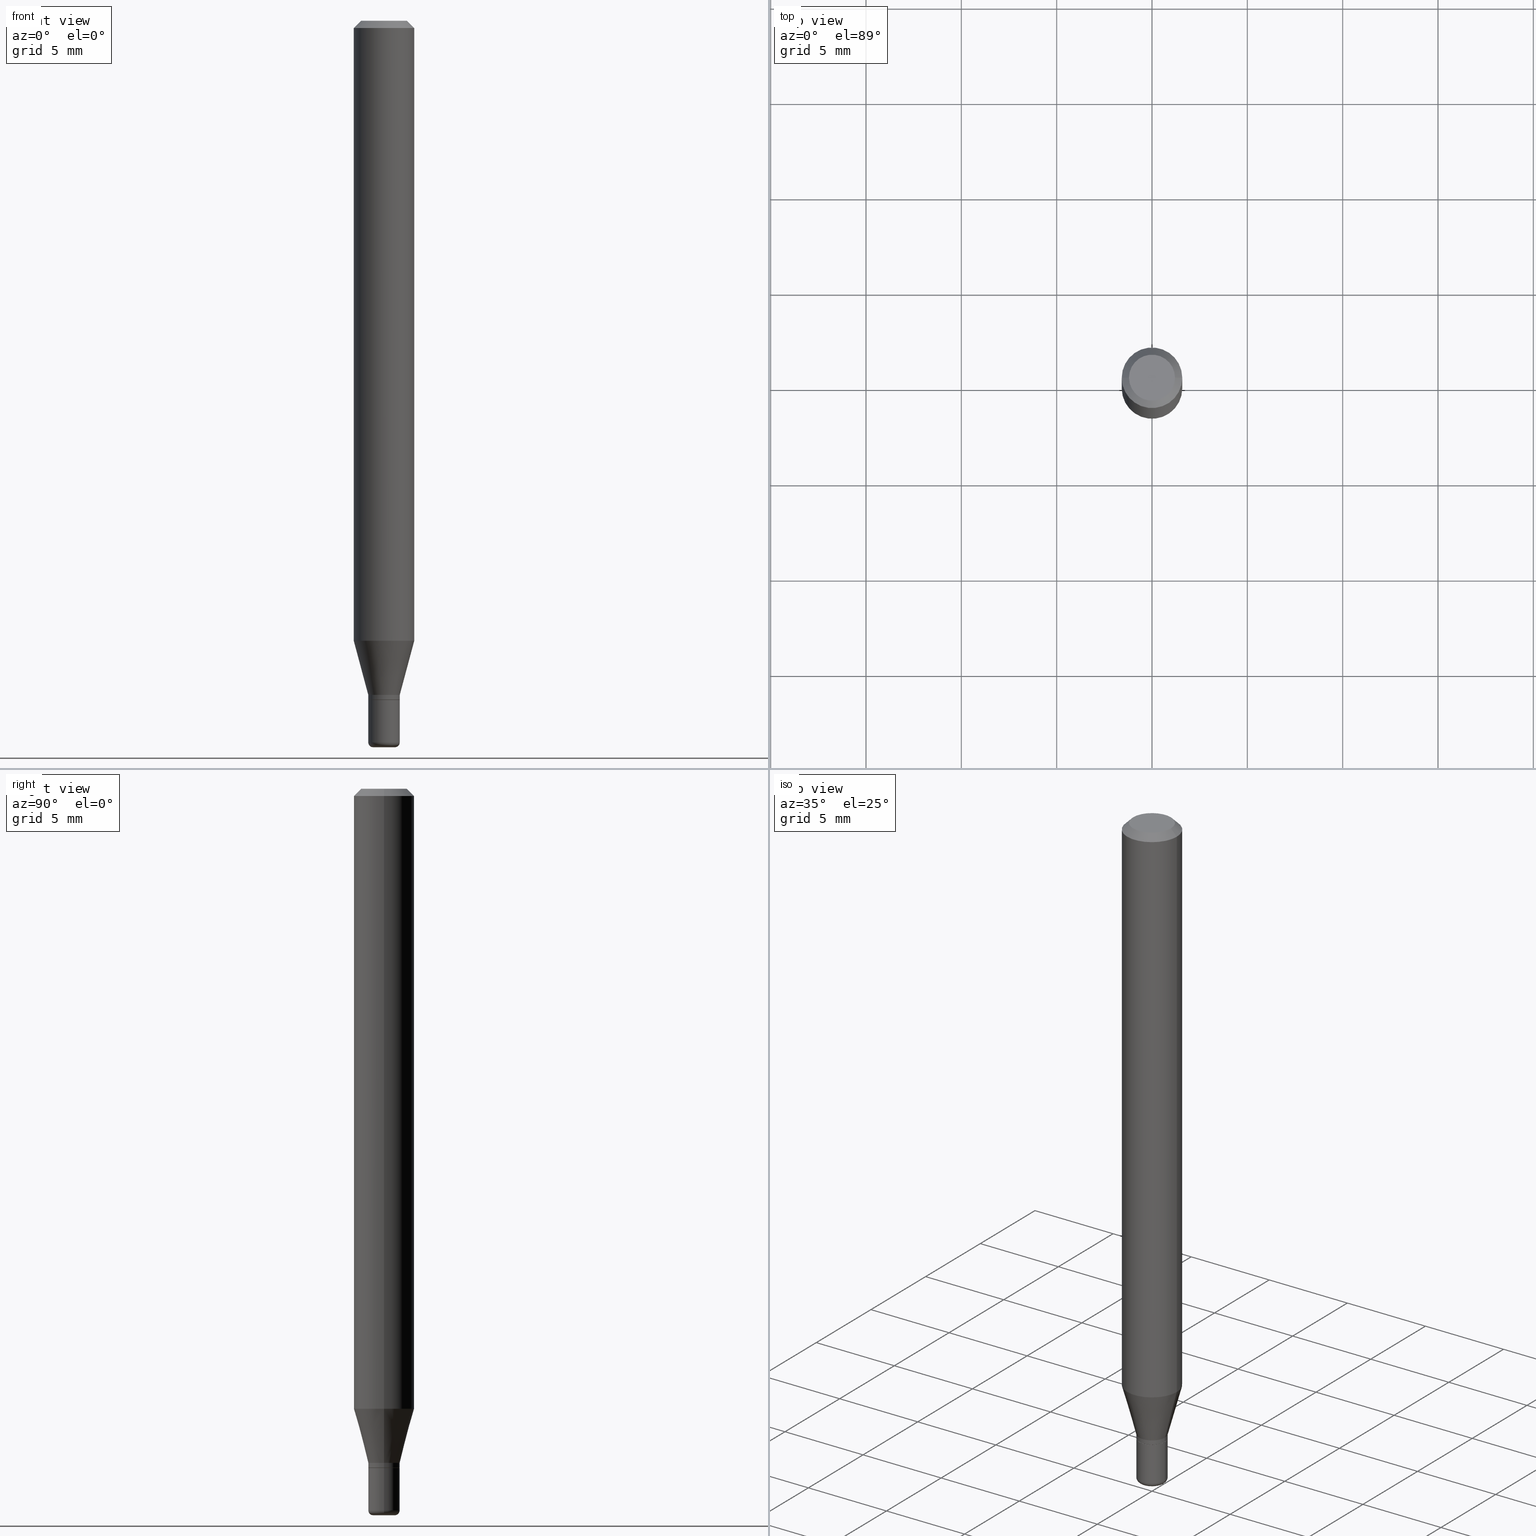
[diagram: canonical four-view strip — front | top / right | iso, engineering-drawing reading convention]
A machine part, canonical four-view strip (front | top / right | iso — engineering-drawing reading convention). The complete STEP part file that produces these views, byte-faithful:
ISO-10303-21;
HEADER;
FILE_DESCRIPTION (( 'STEP AP203' ),
    '1' );
FILE_NAME ('09026.STEP',
    '2024-02-29T21:23:54',
    ( '' ),
    ( '' ),
    'SwSTEP 2.0',
    'SolidWorks 2023',
    '' );
FILE_SCHEMA (( 'CONFIG_CONTROL_DESIGN' ));
ENDSEC;

DATA;
#1 = VECTOR ( 'NONE', #165, 39.37007874015748143 ) ;
#2 = EDGE_CURVE ( 'NONE', #208, #184, #245, .T. ) ;
#3 = CIRCLE ( 'NONE', #268, 0.03249999999999994560 ) ;
#4 = CARTESIAN_POINT ( 'NONE',  ( -0.06250000000000000000, 4.440892098500626162E-16, -3.074334431409316114E-30 ) ) ;
#5 = CC_DESIGN_SECURITY_CLASSIFICATION ( #483, ( #59 ) ) ;
#6 = ORIENTED_EDGE ( 'NONE', *, *, #350, .F. ) ;
#7 = EDGE_CURVE ( 'NONE', #77, #22, #14, .T. ) ;
#8 = FACE_OUTER_BOUND ( 'NONE', #400, .T. ) ;
#9 =( LENGTH_UNIT ( ) NAMED_UNIT ( * ) SI_UNIT ( $, .METRE. ) );
#10 = FACE_OUTER_BOUND ( 'NONE', #223, .T. ) ;
#11 = FACE_OUTER_BOUND ( 'NONE', #466, .T. ) ;
#12 = CARTESIAN_POINT ( 'NONE',  ( 3.404092578209710223E-29, -4.860142023669658418E-15, -1.392000000000000126 ) ) ;
#13 = APPROVAL_ROLE ( '' ) ;
#14 = CIRCLE ( 'NONE', #138, 0.03250000000000000111 ) ;
#15 = DIRECTION ( 'NONE',  ( -2.445468806185136597E-29, 3.491481338843145583E-15, 1.000000000000000000 ) ) ;
#16 = AXIS2_PLACEMENT_3D ( 'NONE', #429, #233, #29 ) ;
#17 = COORDINATED_UNIVERSAL_TIME_OFFSET ( 5, 0, .BEHIND. ) ;
#18 = CARTESIAN_POINT ( 'NONE',  ( -6.680649051745406845E-45, 9.538196290434862081E-31, 2.731847993664263218E-16 ) ) ;
#19 = DATE_AND_TIME ( #90, #43 ) ;
#20 = EDGE_CURVE ( 'NONE', #66, #347, #116, .T. ) ;
#21 = CARTESIAN_POINT ( 'NONE',  ( -0.03249999999999994560, -4.817755626845157109E-15, -1.490000000000000213 ) ) ;
#22 = VERTEX_POINT ( 'NONE', #481 ) ;
#23 = CALENDAR_DATE ( 2024, 29, 2 ) ;
#24 = CARTESIAN_POINT ( 'NONE',  ( 0.02250000000000000264, -5.394338668512659809E-15, -1.500000000000000222 ) ) ;
#25 = ORIENTED_EDGE ( 'NONE', *, *, #143, .T. ) ;
#26 = DIRECTION ( 'NONE',  ( 1.000000000000000000, -6.982962677686262766E-15, 0.000000000000000000 ) ) ;
#27 = VERTEX_POINT ( 'NONE', #46 ) ;
#28 = EDGE_CURVE ( 'NONE', #347, #422, #75, .T. ) ;
#29 = DIRECTION ( 'NONE',  ( 1.000000000000000000, -6.982962677686279332E-15, 0.000000000000000000 ) ) ;
#30 = ORIENTED_EDGE ( 'NONE', *, *, #382, .F. ) ;
#31 = CONICAL_SURFACE ( 'NONE', #516, 0.06250000000000000000, 0.7853981633974488341 ) ;
#32 = EDGE_LOOP ( 'NONE', ( #25, #304, #460, #194 ) ) ;
#33 = LOCAL_TIME ( 16, 23, 54.00000000000000000, #342 ) ;
#34 = DIRECTION ( 'NONE',  ( 1.000000000000000000, -6.982962677686266711E-15, 0.000000000000000000 ) ) ;
#35 = ORIENTED_EDGE ( 'NONE', *, *, #350, .T. ) ;
#36 = FACE_OUTER_BOUND ( 'NONE', #106, .T. ) ;
#37 = CC_DESIGN_DATE_AND_TIME_ASSIGNMENT ( #19, #216, ( #483 ) ) ;
#38 = DIRECTION ( 'NONE',  ( -1.000000000000000000, 6.982962677686266711E-15, 0.000000000000000000 ) ) ;
#39 = ORIENTED_EDGE ( 'NONE', *, *, #338, .F. ) ;
#40 = TOROIDAL_SURFACE ( 'NONE', #376, 0.02249999999999999917, 0.009999999999999946432 ) ;
#41 = AXIS2_PLACEMENT_3D ( 'NONE', #358, #79, #399 ) ;
#42 = ORIENTED_EDGE ( 'NONE', *, *, #372, .T. ) ;
#43 = LOCAL_TIME ( 16, 23, 54.00000000000000000, #502 ) ;
#44 = AXIS2_PLACEMENT_3D ( 'NONE', #222, #267, #308 ) ;
#45 = APPROVAL ( #339, 'UNSPECIFIED' ) ;
#46 = CARTESIAN_POINT ( 'NONE',  ( -0.03199999999999996597, -4.665033934440748182E-15, -1.402000000000000135 ) ) ;
#47 = AXIS2_PLACEMENT_3D ( 'NONE', #447, #492, #176 ) ;
#48 = FACE_OUTER_BOUND ( 'NONE', #32, .T. ) ;
#49 =( CONVERSION_BASED_UNIT ( 'INCH', #408 ) LENGTH_UNIT ( ) NAMED_UNIT ( #221 ) );
#50 = CIRCLE ( 'NONE', #354, 0.03250000000000000111 ) ;
#51 = DIRECTION ( 'NONE',  ( -2.445468806185136597E-29, 3.491481338843145583E-15, 1.000000000000000000 ) ) ;
#52 = DIRECTION ( 'NONE',  ( 1.000000000000000000, -6.982962677686267499E-15, 0.000000000000000000 ) ) ;
#53 = EDGE_CURVE ( 'NONE', #440, #422, #123, .T. ) ;
#54 = PERSON_AND_ORGANIZATION ( #88, #126 ) ;
#55 = CARTESIAN_POINT ( 'NONE',  ( -0.03249999999999998029, -4.629215634547626046E-15, -1.392000000000000126 ) ) ;
#56 = ADVANCED_BREP_SHAPE_REPRESENTATION ( '09026', ( #115, #454, #511 ), #322 ) ;
#57 = SECURITY_CLASSIFICATION_LEVEL ( 'unclassified' ) ;
#58 = CARTESIAN_POINT ( 'NONE',  ( 0.000000000000000000, 0.000000000000000000, 0.000000000000000000 ) ) ;
#59 = PRODUCT_DEFINITION_FORMATION_WITH_SPECIFIED_SOURCE ( 'ANY', '', #335, .NOT_KNOWN. ) ;
#60 = PLANE ( 'NONE',  #471 ) ;
#61 = EDGE_LOOP ( 'NONE', ( #199, #149, #188, #470 ) ) ;
#62 = DIRECTION ( 'NONE',  ( 1.000000000000000000, -6.982962677686266711E-15, 4.852736867747365086E-29 ) ) ;
#63 = AXIS2_PLACEMENT_3D ( 'NONE', #175, #256, #220 ) ;
#64 = VERTEX_POINT ( 'NONE', #160 ) ;
#65 = DIRECTION ( 'NONE',  ( -1.000000000000000000, 7.105427357600964782E-15, 0.000000000000000000 ) ) ;
#66 = VERTEX_POINT ( 'NONE', #402 ) ;
#67 = AXIS2_PLACEMENT_3D ( 'NONE', #435, #328, #38 ) ;
#68 = LINE ( 'NONE', #100, #294 ) ;
#69 = ORIENTED_EDGE ( 'NONE', *, *, #319, .F. ) ;
#70 = ADVANCED_FACE ( 'NONE', ( #36 ), #40, .T. ) ;
#71 = DIRECTION ( 'NONE',  ( -2.445468806185136597E-29, 3.491481338843145583E-15, 1.000000000000000000 ) ) ;
#72 = VERTEX_POINT ( 'NONE', #362 ) ;
#73 = MECHANICAL_CONTEXT ( 'NONE', #297, 'mechanical' ) ;
#74 = CARTESIAN_POINT ( 'NONE',  ( 0.03199999999999996597, -5.118511642744051990E-15, -1.402000000000000135 ) ) ;
#75 = CIRCLE ( 'NONE', #310, 0.06250000000000000000 ) ;
#76 = CARTESIAN_POINT ( 'NONE',  ( 0.000000000000000000, 0.000000000000000000, 0.000000000000000000 ) ) ;
#77 = VERTEX_POINT ( 'NONE', #120 ) ;
#78 = EDGE_CURVE ( 'NONE', #22, #77, #50, .T. ) ;
#79 = DIRECTION ( 'NONE',  ( -2.438088387897960049E-29, 3.491481338843145188E-15, 1.000000000000000000 ) ) ;
#80 = ORIENTED_EDGE ( 'NONE', *, *, #7, .T. ) ;
#81 = VECTOR ( 'NONE', #482, 39.37007874015748143 ) ;
#82 = ADVANCED_FACE ( 'NONE', ( #274 ), #323, .F. ) ;
#83 = ORIENTED_EDGE ( 'NONE', *, *, #324, .T. ) ;
#84 = TOROIDAL_SURFACE ( 'NONE', #467, 0.02249999999999999917, 0.009999999999999946432 ) ;
#85 = EDGE_CURVE ( 'NONE', #231, #249, #284, .T. ) ;
#86 = ORIENTED_EDGE ( 'NONE', *, *, #28, .T. ) ;
#87 = DIRECTION ( 'NONE',  ( 1.000000000000000000, -6.982962677686279332E-15, 0.000000000000000000 ) ) ;
#88 = PERSON ( 'UNSPECIFIED', 'UNSPECIFIED', 'UNSPECIFIED', ('UNSPECIFIED'), ('UNSPECIFIED'), ('UNSPECIFIED') ) ;
#89 = DIRECTION ( 'NONE',  ( 1.000000000000000000, -6.982962677686265922E-15, 4.876176775795935232E-29 ) ) ;
#90 = CALENDAR_DATE ( 2024, 29, 2 ) ;
#91 = CC_DESIGN_APPROVAL ( #133, ( #424 ) ) ;
#92 = DIRECTION ( 'NONE',  ( 1.000000000000000000, -6.982962677686262766E-15, 0.000000000000000000 ) ) ;
#93 = DATE_TIME_ROLE ( 'creation_date' ) ;
#94 = LINE ( 'NONE', #55, #134 ) ;
#95 = AXIS2_PLACEMENT_3D ( 'NONE', #254, #371, #87 ) ;
#96 = ADVANCED_FACE ( 'NONE', ( #127 ), #31, .T. ) ;
#97 = DIRECTION ( 'NONE',  ( 1.000000000000000000, -6.982962677686266711E-15, 4.852736867747365086E-29 ) ) ;
#98 = ADVANCED_FACE ( 'NONE', ( #48 ), #215, .T. ) ;
#99 = VECTOR ( 'NONE', #380, 39.37007874015748143 ) ;
#100 = CARTESIAN_POINT ( 'NONE',  ( 0.06250000000000000000, -4.811533449433669144E-16, -0.01499999999999970281 ) ) ;
#101 = ORIENTED_EDGE ( 'NONE', *, *, #2, .T. ) ;
#102 = COORDINATED_UNIVERSAL_TIME_OFFSET ( 5, 0, .BEHIND. ) ;
#103 = DIRECTION ( 'NONE',  ( -2.438088387897960049E-29, 3.491481338843145188E-15, 1.000000000000000000 ) ) ;
#104 = ORIENTED_EDGE ( 'NONE', *, *, #78, .T. ) ;
#105 = CYLINDRICAL_SURFACE ( 'NONE', #44, 0.03249999999999996642 ) ;
#106 = EDGE_LOOP ( 'NONE', ( #83, #179, #237, #333 ) ) ;
#107 = AXIS2_PLACEMENT_3D ( 'NONE', #496, #453, #257 ) ;
#108 = PLANE ( 'NONE',  #207 ) ;
#109 = EDGE_CURVE ( 'NONE', #72, #363, #193, .T. ) ;
#110 = ORIENTED_EDGE ( 'NONE', *, *, #143, .F. ) ;
#111 = AXIS2_PLACEMENT_3D ( 'NONE', #498, #146, #65 ) ;
#112 = CONICAL_SURFACE ( 'NONE', #67, 0.06250000000000000000, 0.7853981633974488341 ) ;
#113 = DIRECTION ( 'NONE',  ( 1.000000000000000000, -6.982962677686265922E-15, 0.000000000000000000 ) ) ;
#114 = ORIENTED_EDGE ( 'NONE', *, *, #85, .T. ) ;
#115 = MANIFOLD_SOLID_BREP ( 'Body-Move/Copy2[1]', #238 ) ;
#116 = LINE ( 'NONE', #325, #491 ) ;
#117 = CIRCLE ( 'NONE', #282, 0.02250000000000000264 ) ;
#118 = ORIENTED_EDGE ( 'NONE', *, *, #186, .F. ) ;
#119 = DIRECTION ( 'NONE',  ( 1.000000000000000000, -6.982962677686279332E-15, 0.000000000000000000 ) ) ;
#120 = CARTESIAN_POINT ( 'NONE',  ( 0.03250000000000000111, -5.122003124082894208E-15, -1.402000000000000135 ) ) ;
#121 = EDGE_CURVE ( 'NONE', #357, #22, #173, .T. ) ;
#122 = ORIENTED_EDGE ( 'NONE', *, *, #109, .F. ) ;
#123 = LINE ( 'NONE', #4, #370 ) ;
#124 = CC_DESIGN_PERSON_AND_ORGANIZATION_ASSIGNMENT ( #200, #397, ( #335 ) ) ;
#125 = APPLICATION_CONTEXT ( 'configuration controlled 3d designs of mechanical parts and assemblies' ) ;
#126 = ORGANIZATION ( 'UNSPECIFIED', 'UNSPECIFIED', '' ) ;
#127 = FACE_OUTER_BOUND ( 'NONE', #394, .T. ) ;
#128 = DIRECTION ( 'NONE',  ( -2.445468806185136597E-29, 3.491481338843145583E-15, 1.000000000000000000 ) ) ;
#129 = DESIGN_CONTEXT ( 'detailed design', #125, 'design' ) ;
#130 = DIRECTION ( 'NONE',  ( -2.445468806185136597E-29, 3.491481338843145583E-15, 1.000000000000000000 ) ) ;
#131 = ORIENTED_EDGE ( 'NONE', *, *, #53, .F. ) ;
#132 = CARTESIAN_POINT ( 'NONE',  ( 3.668203209277632395E-31, -5.237222008264614861E-17, -0.01499999999999970281 ) ) ;
#133 = APPROVAL ( #490, 'UNSPECIFIED' ) ;
#134 = VECTOR ( 'NONE', #375, 39.37007874015748143 ) ;
#135 = CARTESIAN_POINT ( 'NONE',  ( 0.03199999999999996597, -5.118511642744051990E-15, -1.402000000000000135 ) ) ;
#136 = ORIENTED_EDGE ( 'NONE', *, *, #372, .F. ) ;
#137 = PERSON_AND_ORGANIZATION ( #88, #126 ) ;
#138 = AXIS2_PLACEMENT_3D ( 'NONE', #170, #276, #321 ) ;
#139 = VECTOR ( 'NONE', #259, 39.37007874015748143 ) ;
#140 = CARTESIAN_POINT ( 'NONE',  ( -0.03249999999999996642, 2.309263891220323218E-16, -1.598653904332843006E-30 ) ) ;
#141 = PERSON_AND_ORGANIZATION_ROLE ( 'creator' ) ;
#142 = DIRECTION ( 'NONE',  ( -2.445468806185136597E-29, 3.491481338843145583E-15, 1.000000000000000000 ) ) ;
#143 = EDGE_CURVE ( 'NONE', #184, #428, #236, .T. ) ;
#144 = PERSON_AND_ORGANIZATION_ROLE ( 'classification_officer' ) ;
#145 = AXIS2_PLACEMENT_3D ( 'NONE', #295, #289, #97 ) ;
#146 = DIRECTION ( 'NONE',  ( 7.105427357601001859E-15, 1.000000000000000000, -3.491481338843145583E-15 ) ) ;
#147 = PERSON_AND_ORGANIZATION ( #88, #126 ) ;
#148 = CARTESIAN_POINT ( 'NONE',  ( 3.404092578209710223E-29, -4.860142023669658418E-15, -1.392000000000000126 ) ) ;
#149 = ORIENTED_EDGE ( 'NONE', *, *, #211, .T. ) ;
#150 = PERSON_AND_ORGANIZATION_ROLE ( 'design_supplier' ) ;
#151 = CARTESIAN_POINT ( 'NONE',  ( -0.03249999999999998029, 2.309263891220324204E-16, -1.598653904332843356E-30 ) ) ;
#152 = ORIENTED_EDGE ( 'NONE', *, *, #495, .F. ) ;
#153 = ADVANCED_FACE ( 'NONE', ( #373 ), #360, .T. ) ;
#154 = FACE_OUTER_BOUND ( 'NONE', #163, .T. ) ;
#155 = ORIENTED_EDGE ( 'NONE', *, *, #250, .F. ) ;
#156 = EDGE_CURVE ( 'NONE', #66, #440, #487, .T. ) ;
#157 = DIRECTION ( 'NONE',  ( 1.000000000000000000, -6.982962677686265922E-15, 4.876176775795935793E-29 ) ) ;
#158 = EDGE_LOOP ( 'NONE', ( #131, #510, #387, #152 ) ) ;
#159 = AXIS2_PLACEMENT_3D ( 'NONE', #484, #288, #278 ) ;
#160 = CARTESIAN_POINT ( 'NONE',  ( 0.04750000000000000749, -4.035134999187568762E-16, 2.731847993664288856E-16 ) ) ;
#161 = CC_DESIGN_PERSON_AND_ORGANIZATION_ASSIGNMENT ( #420, #144, ( #483 ) ) ;
#162 = DIRECTION ( 'NONE',  ( -2.445468806185136597E-29, 3.491481338843145583E-15, 1.000000000000000000 ) ) ;
#163 = EDGE_LOOP ( 'NONE', ( #6, #381 ) ) ;
#164 = LINE ( 'NONE', #320, #248 ) ;
#165 = DIRECTION ( 'NONE',  ( 0.7071067811866199593, -2.468850131083015945E-15, 0.7071067811864750752 ) ) ;
#166 = CIRCLE ( 'NONE', #16, 0.03199999999999996597 ) ;
#167 = DIRECTION ( 'NONE',  ( 1.000000000000000000, -6.982962677686270655E-15, 4.883557194083114022E-29 ) ) ;
#168 = AXIS2_PLACEMENT_3D ( 'NONE', #423, #379, #26 ) ;
#169 = ADVANCED_FACE ( 'NONE', ( #10 ), #443, .T. ) ;
#170 = CARTESIAN_POINT ( 'NONE',  ( 3.428547266271562329E-29, -4.895056837058090855E-15, -1.402000000000000135 ) ) ;
#171 = CARTESIAN_POINT ( 'NONE',  ( 3.404092578209710223E-29, -4.860142023669658418E-15, -1.392000000000000126 ) ) ;
#172 = FACE_OUTER_BOUND ( 'NONE', #366, .T. ) ;
#173 = LINE ( 'NONE', #140, #81 ) ;
#174 = CARTESIAN_POINT ( 'NONE',  ( 0.03249999999999994560, -5.429253481901091458E-15, -1.490000000000000213 ) ) ;
#175 = CARTESIAN_POINT ( 'NONE',  ( 3.427324531868469528E-29, -4.893311096388670141E-15, -1.401500000000000412 ) ) ;
#176 = DIRECTION ( 'NONE',  ( 1.000000000000000000, -6.982962677686265922E-15, 4.876176775795935232E-29 ) ) ;
#177 = APPROVAL_ROLE ( '' ) ;
#178 = FACE_OUTER_BOUND ( 'NONE', #501, .T. ) ;
#179 = ORIENTED_EDGE ( 'NONE', *, *, #341, .T. ) ;
#180 = CALENDAR_DATE ( 2024, 29, 2 ) ;
#181 = LINE ( 'NONE', #303, #280 ) ;
#182 = EDGE_CURVE ( 'NONE', #27, #208, #264, .T. ) ;
#183 = CARTESIAN_POINT ( 'NONE',  ( 0.03249999999999996642, -2.269462870248034512E-16, 1.584757452133677591E-30 ) ) ;
#184 = VERTEX_POINT ( 'NONE', #411 ) ;
#185 = APPROVAL_DATE_TIME ( #449, #133 ) ;
#186 = EDGE_CURVE ( 'NONE', #474, #64, #367, .T. ) ;
#187 = CARTESIAN_POINT ( 'NONE',  ( 0.03249999999999998029, -5.087088310694461770E-15, -1.392000000000000126 ) ) ;
#188 = ORIENTED_EDGE ( 'NONE', *, *, #156, .F. ) ;
#189 = EDGE_CURVE ( 'NONE', #440, #66, #432, .T. ) ;
#190 = DIRECTION ( 'NONE',  ( -2.445468806185136597E-29, 3.491481338843145583E-15, 1.000000000000000000 ) ) ;
#191 = ORIENTED_EDGE ( 'NONE', *, *, #156, .T. ) ;
#192 = CARTESIAN_POINT ( 'NONE',  ( 0.02249999999999999917, -5.359423855124228949E-15, -1.490000000000000213 ) ) ;
#193 = CIRCLE ( 'NONE', #290, 0.03249999999999998029 ) ;
#194 = ORIENTED_EDGE ( 'NONE', *, *, #431, .F. ) ;
#195 = DIRECTION ( 'NONE',  ( 1.000000000000000000, -6.982962677686266711E-15, 4.876176775795935793E-29 ) ) ;
#196 = ORIENTED_EDGE ( 'NONE', *, *, #7, .F. ) ;
#197 = CIRCLE ( 'NONE', #111, 0.009999999999999944697 ) ;
#198 = FACE_OUTER_BOUND ( 'NONE', #266, .T. ) ;
#199 = ORIENTED_EDGE ( 'NONE', *, *, #277, .T. ) ;
#200 = PERSON_AND_ORGANIZATION ( #88, #126 ) ;
#201 = CARTESIAN_POINT ( 'NONE',  ( 3.643748521215853910E-29, -5.202307194876288105E-15, -1.490000000000000213 ) ) ;
#202 = AXIS2_PLACEMENT_3D ( 'NONE', #12, #414, #409 ) ;
#203 = DIRECTION ( 'NONE',  ( 1.000000000000000000, -6.982962677686279332E-15, 0.000000000000000000 ) ) ;
#204 = ADVANCED_FACE ( 'NONE', ( #11 ), #332, .T. ) ;
#205 = ORIENTED_EDGE ( 'NONE', *, *, #235, .F. ) ;
#206 = CC_DESIGN_PERSON_AND_ORGANIZATION_ASSIGNMENT ( #54, #141, ( #59 ) ) ;
#207 = AXIS2_PLACEMENT_3D ( 'NONE', #390, #103, #157 ) ;
#208 = VERTEX_POINT ( 'NONE', #135 ) ;
#209 = DIRECTION ( 'NONE',  ( -2.445468806185136597E-29, 3.491481338843145583E-15, 1.000000000000000000 ) ) ;
#210 = AXIS2_PLACEMENT_3D ( 'NONE', #217, #15, #292 ) ;
#211 = EDGE_CURVE ( 'NONE', #72, #440, #94, .T. ) ;
#212 = DIRECTION ( 'NONE',  ( 1.000000000000000000, -6.982962677686270655E-15, 4.883557194083114022E-29 ) ) ;
#213 = DIRECTION ( 'NONE',  ( 1.000000000000000000, -6.982962677686262766E-15, 0.000000000000000000 ) ) ;
#214 = ORIENTED_EDGE ( 'NONE', *, *, #341, .F. ) ;
#215 = CYLINDRICAL_SURFACE ( 'NONE', #47, 0.03249999999999998029 ) ;
#216 = DATE_TIME_ROLE ( 'classification_date' ) ;
#217 = CARTESIAN_POINT ( 'NONE',  ( 3.130294163219477608E-29, -4.469230451162420630E-15, -1.280038475772933504 ) ) ;
#218 = ADVANCED_FACE ( 'NONE', ( #178 ), #337, .T. ) ;
#219 = AXIS2_PLACEMENT_3D ( 'NONE', #517, #162, #119 ) ;
#220 = DIRECTION ( 'NONE',  ( 1.000000000000000000, -6.982962677686265922E-15, 0.000000000000000000 ) ) ;
#221 = DIMENSIONAL_EXPONENTS ( 1.000000000000000000, 0.000000000000000000, 0.000000000000000000, 0.000000000000000000, 0.000000000000000000, 0.000000000000000000, 0.000000000000000000 ) ;
#222 = CARTESIAN_POINT ( 'NONE',  ( 0.000000000000000000, 0.000000000000000000, 0.000000000000000000 ) ) ;
#223 = EDGE_LOOP ( 'NONE', ( #205, #234, #263, #122 ) ) ;
#224 = APPROVAL_STATUS ( 'not_yet_approved' ) ;
#225 = DIRECTION ( 'NONE',  ( -0.7071067811866199593, 7.493145998870616062E-15, 0.7071067811864750752 ) ) ;
#226 = ADVANCED_FACE ( 'NONE', ( #8 ), #84, .T. ) ;
#227 = ORIENTED_EDGE ( 'NONE', *, *, #53, .T. ) ;
#228 = EDGE_CURVE ( 'NONE', #363, #66, #330, .T. ) ;
#229 = DIRECTION ( 'NONE',  ( 0.7071067811865479058, -7.319954787623257623E-15, -0.7071067811865471286 ) ) ;
#230 = CC_DESIGN_APPROVAL ( #45, ( #59 ) ) ;
#231 = VERTEX_POINT ( 'NONE', #485 ) ;
#232 = CC_DESIGN_APPROVAL ( #472, ( #483 ) ) ;
#233 = DIRECTION ( 'NONE',  ( -2.445468806185136597E-29, 3.491481338843145583E-15, 1.000000000000000000 ) ) ;
#234 = ORIENTED_EDGE ( 'NONE', *, *, #250, .T. ) ;
#235 = EDGE_CURVE ( 'NONE', #428, #72, #346, .T. ) ;
#236 = CIRCLE ( 'NONE', #63, 0.03249999999999996642 ) ;
#237 = ORIENTED_EDGE ( 'NONE', *, *, #464, .F. ) ;
#238 = CLOSED_SHELL ( 'NONE', ( #70, #244, #82, #218, #226, #479 ) ) ;
#239 = CARTESIAN_POINT ( 'NONE',  ( 3.668203209277704895E-29, -5.237222008264718177E-15, -1.500000000000000222 ) ) ;
#240 =( NAMED_UNIT ( * ) SI_UNIT ( $, .STERADIAN. ) SOLID_ANGLE_UNIT ( ) );
#241 = DIRECTION ( 'NONE',  ( -2.445468806185136877E-29, 3.491481338843145188E-15, 1.000000000000000000 ) ) ;
#242 = DIRECTION ( 'NONE',  ( -2.445468806185136597E-29, 3.491481338843145583E-15, 1.000000000000000000 ) ) ;
#243 = EDGE_CURVE ( 'NONE', #64, #474, #404, .T. ) ;
#244 = ADVANCED_FACE ( 'NONE', ( #311 ), #105, .T. ) ;
#245 = LINE ( 'NONE', #74, #1 ) ;
#246 = VECTOR ( 'NONE', #369, 39.37007874015748143 ) ;
#247 = AXIS2_PLACEMENT_3D ( 'NONE', #132, #242, #34 ) ;
#248 = VECTOR ( 'NONE', #477, 39.37007874015748143 ) ;
#249 = VERTEX_POINT ( 'NONE', #24 ) ;
#250 = EDGE_CURVE ( 'NONE', #428, #184, #296, .T. ) ;
#251 = CARTESIAN_POINT ( 'NONE',  ( 3.643748521215853910E-29, -5.202307194876288105E-15, -1.490000000000000213 ) ) ;
#252 = CARTESIAN_POINT ( 'NONE',  ( 3.668203209277632395E-31, -5.237222008264614861E-17, -0.01499999999999970281 ) ) ;
#253 = APPROVAL_DATE_TIME ( #299, #472 ) ;
#254 = CARTESIAN_POINT ( 'NONE',  ( 3.428547266271562329E-29, -4.895056837058090855E-15, -1.402000000000000135 ) ) ;
#255 = APPROVAL_ROLE ( '' ) ;
#256 = DIRECTION ( 'NONE',  ( -2.445468806185136597E-29, 3.491481338843145583E-15, 1.000000000000000000 ) ) ;
#257 = DIRECTION ( 'NONE',  ( 1.000000000000000000, -6.982962677686267499E-15, 4.876176775795936353E-29 ) ) ;
#258 = APPROVAL_PERSON_ORGANIZATION ( #137, #472, #13 ) ;
#259 = DIRECTION ( 'NONE',  ( -0.7071067811865479058, 2.468850131082261005E-15, -0.7071067811865471286 ) ) ;
#260 = EDGE_LOOP ( 'NONE', ( #293, #344, #301, #307 ) ) ;
#261 = CALENDAR_DATE ( 2024, 29, 2 ) ;
#262 = DIRECTION ( 'NONE',  ( -6.982962677686266711E-15, -1.000000000000000000, 3.491481338843145583E-15 ) ) ;
#263 = ORIENTED_EDGE ( 'NONE', *, *, #431, .T. ) ;
#264 = CIRCLE ( 'NONE', #95, 0.03199999999999996597 ) ;
#265 = DIRECTION ( 'NONE',  ( 1.000000000000000000, -6.982962677686269866E-15, 0.000000000000000000 ) ) ;
#266 = EDGE_LOOP ( 'NONE', ( #35, #476, #110, #391 ) ) ;
#267 = DIRECTION ( 'NONE',  ( -2.445468806185136597E-29, 3.491481338843145583E-15, 1.000000000000000000 ) ) ;
#268 = AXIS2_PLACEMENT_3D ( 'NONE', #340, #383, #265 ) ;
#269 = ORIENTED_EDGE ( 'NONE', *, *, #495, .T. ) ;
#270 = APPROVAL_PERSON_ORGANIZATION ( #377, #133, #177 ) ;
#271 = DIRECTION ( 'NONE',  ( 1.000000000000000000, -6.982962677686267499E-15, 0.000000000000000000 ) ) ;
#272 = ORIENTED_EDGE ( 'NONE', *, *, #121, .F. ) ;
#273 = CARTESIAN_POINT ( 'NONE',  ( -0.04750000000000000749, 3.578768372314221353E-16, 2.731847993664239060E-16 ) ) ;
#274 = FACE_OUTER_BOUND ( 'NONE', #351, .T. ) ;
#275 = DIRECTION ( 'NONE',  ( 1.000000000000000000, 0.000000000000000000, 0.000000000000000000 ) ) ;
#276 = DIRECTION ( 'NONE',  ( -2.445468806185136597E-29, 3.491481338843145583E-15, 1.000000000000000000 ) ) ;
#277 = EDGE_CURVE ( 'NONE', #363, #72, #349, .T. ) ;
#278 = DIRECTION ( 'NONE',  ( 1.000000000000000000, -6.982962677686269866E-15, 0.000000000000000000 ) ) ;
#279 = CARTESIAN_POINT ( 'NONE',  ( 3.428547266271562329E-29, -4.895056837058090855E-15, -1.402000000000000135 ) ) ;
#280 = VECTOR ( 'NONE', #225, 39.37007874015748143 ) ;
#281 = DIRECTION ( 'NONE',  ( 2.438088387897960049E-29, -3.491481338843145188E-15, -1.000000000000000000 ) ) ;
#282 = AXIS2_PLACEMENT_3D ( 'NONE', #462, #71, #271 ) ;
#283 = DIRECTION ( 'NONE',  ( 1.000000000000000000, -6.982962677686258033E-15, 0.000000000000000000 ) ) ;
#284 = CIRCLE ( 'NONE', #316, 0.02250000000000000264 ) ;
#285 = LOCAL_TIME ( 16, 23, 54.00000000000000000, #17 ) ;
#286 = CARTESIAN_POINT ( 'NONE',  ( 0.03249999999999998029, -5.087088310694461770E-15, -1.392000000000000126 ) ) ;
#287 = AXIS2_PLACEMENT_3D ( 'NONE', #306, #469, #113 ) ;
#288 = DIRECTION ( 'NONE',  ( -2.445468806185136597E-29, 3.491481338843145583E-15, 1.000000000000000000 ) ) ;
#289 = DIRECTION ( 'NONE',  ( -2.445468806185136597E-29, 3.491481338843145583E-15, 1.000000000000000000 ) ) ;
#290 = AXIS2_PLACEMENT_3D ( 'NONE', #171, #130, #213 ) ;
#291 = UNCERTAINTY_MEASURE_WITH_UNIT (LENGTH_MEASURE( 1.000000000000000082E-05 ), #49, 'distance_accuracy_value', 'NONE');
#292 = DIRECTION ( 'NONE',  ( 1.000000000000000000, -6.982962677686262766E-15, 0.000000000000000000 ) ) ;
#293 = ORIENTED_EDGE ( 'NONE', *, *, #211, .F. ) ;
#294 = VECTOR ( 'NONE', #229, 39.37007874015748143 ) ;
#295 = CARTESIAN_POINT ( 'NONE',  ( -6.680649051745406845E-45, 9.538196290434862081E-31, 2.731847993664263218E-16 ) ) ;
#296 = CIRCLE ( 'NONE', #287, 0.03249999999999996642 ) ;
#297 = APPLICATION_CONTEXT ( 'configuration controlled 3d designs of mechanical parts and assemblies' ) ;
#298 = CARTESIAN_POINT ( 'NONE',  ( 3.130294163219477608E-29, -4.469230451162420630E-15, -1.280038475772933504 ) ) ;
#299 = DATE_AND_TIME ( #336, #33 ) ;
#300 = CARTESIAN_POINT ( 'NONE',  ( 0.06250000000000000000, -4.888073874380378612E-16, -0.01499999999999970281 ) ) ;
#301 = ORIENTED_EDGE ( 'NONE', *, *, #228, .T. ) ;
#302 = PERSON_AND_ORGANIZATION ( #88, #126 ) ;
#303 = CARTESIAN_POINT ( 'NONE',  ( -0.03199999999999996597, -4.667683161614859383E-15, -1.402000000000000135 ) ) ;
#304 = ORIENTED_EDGE ( 'NONE', *, *, #235, .T. ) ;
#305 = PERSON_AND_ORGANIZATION_ROLE ( 'creator' ) ;
#306 = CARTESIAN_POINT ( 'NONE',  ( 3.427324531868469528E-29, -4.893311096388670141E-15, -1.401500000000000412 ) ) ;
#307 = ORIENTED_EDGE ( 'NONE', *, *, #189, .F. ) ;
#308 = DIRECTION ( 'NONE',  ( 1.000000000000000000, -6.982962677686267499E-15, 4.876176775795936353E-29 ) ) ;
#309 = ORIENTED_EDGE ( 'NONE', *, *, #364, .F. ) ;
#310 = AXIS2_PLACEMENT_3D ( 'NONE', #436, #209, #403 ) ;
#311 = FACE_OUTER_BOUND ( 'NONE', #513, .T. ) ;
#312 = VECTOR ( 'NONE', #343, 39.37007874015748143 ) ;
#313 = ORIENTED_EDGE ( 'NONE', *, *, #382, .T. ) ;
#314 = CARTESIAN_POINT ( 'NONE',  ( 0.000000000000000000, 0.000000000000000000, 0.000000000000000000 ) ) ;
#315 = DIRECTION ( 'NONE',  ( -2.445468806185136597E-29, 3.491481338843145583E-15, 1.000000000000000000 ) ) ;
#316 = AXIS2_PLACEMENT_3D ( 'NONE', #239, #398, #52 ) ;
#317 = DIRECTION ( 'NONE',  ( -2.445468806185136597E-29, 3.491481338843145583E-15, 1.000000000000000000 ) ) ;
#318 = ORIENTED_EDGE ( 'NONE', *, *, #78, .F. ) ;
#319 = EDGE_CURVE ( 'NONE', #27, #428, #181, .T. ) ;
#320 = CARTESIAN_POINT ( 'NONE',  ( 0.03249999999999998029, -2.269462870248035005E-16, 1.584757452133677942E-30 ) ) ;
#321 = DIRECTION ( 'NONE',  ( 1.000000000000000000, -6.982962677686258033E-15, 0.000000000000000000 ) ) ;
#322 =( GEOMETRIC_REPRESENTATION_CONTEXT ( 3 ) GLOBAL_UNCERTAINTY_ASSIGNED_CONTEXT ( ( #291 ) ) GLOBAL_UNIT_ASSIGNED_CONTEXT ( ( #49, #512, #240 ) ) REPRESENTATION_CONTEXT ( 'NONE', 'WORKASPACE' ) );
#323 = PLANE ( 'NONE',  #410 ) ;
#324 = EDGE_CURVE ( 'NONE', #249, #231, #117, .T. ) ;
#325 = CARTESIAN_POINT ( 'NONE',  ( 0.06250000000000000000, -4.364351673553916694E-16, 3.047610484872459871E-30 ) ) ;
#326 = AXIS2_PLACEMENT_3D ( 'NONE', #298, #416, #92 ) ;
#327 = CONICAL_SURFACE ( 'NONE', #385, 0.03199999999999996597, 0.7853981633975507526 ) ;
#328 = DIRECTION ( 'NONE',  ( 2.445468806185136597E-29, -3.491481338843145583E-15, -1.000000000000000000 ) ) ;
#329 = AXIS2_PLACEMENT_3D ( 'NONE', #18, #500, #62 ) ;
#330 = LINE ( 'NONE', #286, #246 ) ;
#331 = ORIENTED_EDGE ( 'NONE', *, *, #121, .T. ) ;
#332 = CYLINDRICAL_SURFACE ( 'NONE', #407, 0.06250000000000000000 ) ;
#333 = ORIENTED_EDGE ( 'NONE', *, *, #415, .F. ) ;
#334 = DIRECTION ( 'NONE',  ( -1.000000000000000000, 6.982962677686266711E-15, 0.000000000000000000 ) ) ;
#335 = PRODUCT ( '09026', '09026', '', ( #73 ) ) ;
#336 = CALENDAR_DATE ( 2024, 29, 2 ) ;
#337 = CYLINDRICAL_SURFACE ( 'NONE', #107, 0.03249999999999996642 ) ;
#338 = EDGE_CURVE ( 'NONE', #357, #457, #3, .T. ) ;
#339 = APPROVAL_STATUS ( 'not_yet_approved' ) ;
#340 = CARTESIAN_POINT ( 'NONE',  ( 3.643748521215853910E-29, -5.202307194876288105E-15, -1.490000000000000213 ) ) ;
#341 = EDGE_CURVE ( 'NONE', #231, #357, #197, .T. ) ;
#342 = COORDINATED_UNIVERSAL_TIME_OFFSET ( 5, 0, .BEHIND. ) ;
#343 = DIRECTION ( 'NONE',  ( -2.445468806185136877E-29, 3.491481338843145188E-15, 1.000000000000000000 ) ) ;
#344 = ORIENTED_EDGE ( 'NONE', *, *, #109, .T. ) ;
#345 = PERSON_AND_ORGANIZATION ( #88, #126 ) ;
#346 = LINE ( 'NONE', #151, #99 ) ;
#347 = VERTEX_POINT ( 'NONE', #300 ) ;
#348 = CARTESIAN_POINT ( 'NONE',  ( 3.316907271900976589E-16, 0.04750000000000000749, -2.925296391183627249E-17 ) ) ;
#349 = CIRCLE ( 'NONE', #168, 0.03249999999999998029 ) ;
#350 = EDGE_CURVE ( 'NONE', #208, #27, #166, .T. ) ;
#351 = EDGE_LOOP ( 'NONE', ( #80, #104 ) ) ;
#352 = DIRECTION ( 'NONE',  ( 1.000000000000000000, -6.982962677686274599E-15, 0.000000000000000000 ) ) ;
#353 = ORIENTED_EDGE ( 'NONE', *, *, #182, .T. ) ;
#354 = AXIS2_PLACEMENT_3D ( 'NONE', #279, #315, #283 ) ;
#355 = FACE_OUTER_BOUND ( 'NONE', #505, .T. ) ;
#356 = LOCAL_TIME ( 16, 23, 54.00000000000000000, #499 ) ;
#357 = VERTEX_POINT ( 'NONE', #21 ) ;
#358 = CARTESIAN_POINT ( 'NONE',  ( 3.582686580359766038E-29, -5.359686688179453325E-15, -1.500000000000000222 ) ) ;
#359 = EDGE_LOOP ( 'NONE', ( #489, #430 ) ) ;
#360 = CONICAL_SURFACE ( 'NONE', #202, 0.03249999999999998029, 0.2617993877991490748 ) ;
#361 = APPLICATION_PROTOCOL_DEFINITION ( 'international standard', 'config_control_design', 1994, #125 ) ;
#362 = CARTESIAN_POINT ( 'NONE',  ( -0.03249999999999998029, -4.327178437929992425E-15, -1.392000000000000126 ) ) ;
#363 = VERTEX_POINT ( 'NONE', #187 ) ;
#364 = EDGE_CURVE ( 'NONE', #457, #77, #455, .T. ) ;
#365 = CONICAL_SURFACE ( 'NONE', #426, 0.03249999999999998029, 0.2617993877991490748 ) ;
#366 = EDGE_LOOP ( 'NONE', ( #136, #118, #313, #269 ) ) ;
#367 = CIRCLE ( 'NONE', #145, 0.04750000000000000749 ) ;
#368 = EDGE_LOOP ( 'NONE', ( #463, #507 ) ) ;
#369 = DIRECTION ( 'NONE',  ( 0.2588190451025204064, 1.565188264969629659E-15, 0.9659258262890684232 ) ) ;
#370 = VECTOR ( 'NONE', #478, 39.37007874015748143 ) ;
#371 = DIRECTION ( 'NONE',  ( -2.445468806185136597E-29, 3.491481338843145583E-15, 1.000000000000000000 ) ) ;
#372 = EDGE_CURVE ( 'NONE', #64, #347, #68, .T. ) ;
#373 = FACE_OUTER_BOUND ( 'NONE', #61, .T. ) ;
#374 = APPROVAL_DATE_TIME ( #413, #45 ) ;
#375 = DIRECTION ( 'NONE',  ( -0.2588190451025204064, 5.211531920934543942E-15, 0.9659258262890684232 ) ) ;
#376 = AXIS2_PLACEMENT_3D ( 'NONE', #201, #442, #167 ) ;
#377 = PERSON_AND_ORGANIZATION ( #88, #126 ) ;
#378 = AXIS2_PLACEMENT_3D ( 'NONE', #76, #128, #195 ) ;
#379 = DIRECTION ( 'NONE',  ( -2.445468806185136597E-29, 3.491481338843145583E-15, 1.000000000000000000 ) ) ;
#380 = DIRECTION ( 'NONE',  ( -2.445468806185136877E-29, 3.491481338843145188E-15, 1.000000000000000000 ) ) ;
#381 = ORIENTED_EDGE ( 'NONE', *, *, #182, .F. ) ;
#382 = EDGE_CURVE ( 'NONE', #474, #422, #503, .T. ) ;
#383 = DIRECTION ( 'NONE',  ( -2.445468806185136597E-29, 3.491481338843145583E-15, 1.000000000000000000 ) ) ;
#384 = ORIENTED_EDGE ( 'NONE', *, *, #338, .T. ) ;
#385 = AXIS2_PLACEMENT_3D ( 'NONE', #475, #317, #203 ) ;
#386 = CARTESIAN_POINT ( 'NONE',  ( -0.06250000000000000000, 3.840629472727455270E-16, -0.01499999999999970281 ) ) ;
#387 = ORIENTED_EDGE ( 'NONE', *, *, #20, .T. ) ;
#388 = CONICAL_SURFACE ( 'NONE', #219, 0.03199999999999996597, 0.7853981633975507526 ) ;
#389 = ADVANCED_FACE ( 'NONE', ( #465 ), #365, .T. ) ;
#390 = CARTESIAN_POINT ( 'NONE',  ( 3.428547266271562329E-29, -4.895056837058090855E-15, -1.402000000000000135 ) ) ;
#391 = ORIENTED_EDGE ( 'NONE', *, *, #2, .F. ) ;
#392 = AXIS2_PLACEMENT_3D ( 'NONE', #58, #51, #89 ) ;
#393 = CYLINDRICAL_SURFACE ( 'NONE', #378, 0.06250000000000000000 ) ;
#394 = EDGE_LOOP ( 'NONE', ( #405, #42, #86, #30 ) ) ;
#395 = ADVANCED_FACE ( 'NONE', ( #418 ), #60, .F. ) ;
#396 = ADVANCED_FACE ( 'NONE', ( #154 ), #108, .F. ) ;
#397 = PERSON_AND_ORGANIZATION_ROLE ( 'design_owner' ) ;
#398 = DIRECTION ( 'NONE',  ( -2.445468806185136597E-29, 3.491481338843145583E-15, 1.000000000000000000 ) ) ;
#399 = DIRECTION ( 'NONE',  ( 1.000000000000000000, -6.982962677686265922E-15, 4.876176775795935793E-29 ) ) ;
#400 = EDGE_LOOP ( 'NONE', ( #214, #114, #518, #39 ) ) ;
#401 = CARTESIAN_POINT ( 'NONE',  ( -0.06250000000000000000, -4.025141241312358014E-15, -1.280038475772933504 ) ) ;
#402 = CARTESIAN_POINT ( 'NONE',  ( 0.06250000000000000000, -4.905665618517812299E-15, -1.280038475772933504 ) ) ;
#403 = DIRECTION ( 'NONE',  ( 1.000000000000000000, -6.982962677686266711E-15, 0.000000000000000000 ) ) ;
#404 = CIRCLE ( 'NONE', #329, 0.04750000000000000749 ) ;
#405 = ORIENTED_EDGE ( 'NONE', *, *, #243, .F. ) ;
#406 = DIRECTION ( 'NONE',  ( -2.445468806185136597E-29, 3.491481338843145583E-15, 1.000000000000000000 ) ) ;
#407 = AXIS2_PLACEMENT_3D ( 'NONE', #451, #142, #488 ) ;
#408 = LENGTH_MEASURE_WITH_UNIT ( LENGTH_MEASURE( 0.02539999999999999897 ), #9 );
#409 = DIRECTION ( 'NONE',  ( 1.000000000000000000, -6.982962677686262766E-15, 0.000000000000000000 ) ) ;
#410 = AXIS2_PLACEMENT_3D ( 'NONE', #480, #281, #434 ) ;
#411 = CARTESIAN_POINT ( 'NONE',  ( 0.03249999999999996642, -5.120257383413474282E-15, -1.401500000000000412 ) ) ;
#412 = PRODUCT_DEFINITION_SHAPE ( 'NONE', 'NONE',  #424 ) ;
#413 = DATE_AND_TIME ( #180, #356 ) ;
#414 = DIRECTION ( 'NONE',  ( -2.445468806185136597E-29, 3.491481338843145583E-15, 1.000000000000000000 ) ) ;
#415 = EDGE_CURVE ( 'NONE', #249, #457, #493, .T. ) ;
#416 = DIRECTION ( 'NONE',  ( -2.445468806185136597E-29, 3.491481338843145583E-15, 1.000000000000000000 ) ) ;
#417 = CIRCLE ( 'NONE', #247, 0.06250000000000000000 ) ;
#418 = FACE_OUTER_BOUND ( 'NONE', #368, .T. ) ;
#419 = ORIENTED_EDGE ( 'NONE', *, *, #20, .F. ) ;
#420 = PERSON_AND_ORGANIZATION ( #88, #126 ) ;
#421 = CARTESIAN_POINT ( 'NONE',  ( -0.06250000000000000000, -1.816712125772470647E-15, -0.01499999999999970281 ) ) ;
#422 = VERTEX_POINT ( 'NONE', #421 ) ;
#423 = CARTESIAN_POINT ( 'NONE',  ( 3.404092578209710223E-29, -4.860142023669658418E-15, -1.392000000000000126 ) ) ;
#424 = PRODUCT_DEFINITION ( 'UNKNOWN', '', #59, #129 ) ;
#425 = ORIENTED_EDGE ( 'NONE', *, *, #464, .T. ) ;
#426 = AXIS2_PLACEMENT_3D ( 'NONE', #148, #190, #427 ) ;
#427 = DIRECTION ( 'NONE',  ( 1.000000000000000000, -6.982962677686262766E-15, 0.000000000000000000 ) ) ;
#428 = VERTEX_POINT ( 'NONE', #509 ) ;
#429 = CARTESIAN_POINT ( 'NONE',  ( 3.428547266271562329E-29, -4.895056837058090855E-15, -1.402000000000000135 ) ) ;
#430 = ORIENTED_EDGE ( 'NONE', *, *, #85, .F. ) ;
#431 = EDGE_CURVE ( 'NONE', #184, #363, #164, .T. ) ;
#432 = CIRCLE ( 'NONE', #210, 0.06250000000000000000 ) ;
#433 = APPLICATION_PROTOCOL_DEFINITION ( 'international standard', 'config_control_design', 1994, #297 ) ;
#434 = DIRECTION ( 'NONE',  ( -1.000000000000000000, 6.982962677686265922E-15, -4.876176775795935793E-29 ) ) ;
#435 = CARTESIAN_POINT ( 'NONE',  ( 3.668203209277632395E-31, -5.237222008264614861E-17, -0.01499999999999970281 ) ) ;
#436 = CARTESIAN_POINT ( 'NONE',  ( 3.668203209277632395E-31, -5.237222008264614861E-17, -0.01499999999999970281 ) ) ;
#437 = ADVANCED_FACE ( 'NONE', ( #172 ), #112, .T. ) ;
#438 = FACE_OUTER_BOUND ( 'NONE', #359, .T. ) ;
#439 = ORIENTED_EDGE ( 'NONE', *, *, #28, .F. ) ;
#440 = VERTEX_POINT ( 'NONE', #401 ) ;
#441 = CC_DESIGN_PERSON_AND_ORGANIZATION_ASSIGNMENT ( #345, #305, ( #424 ) ) ;
#442 = DIRECTION ( 'NONE',  ( -2.445468806185136597E-29, 3.491481338843145583E-15, 1.000000000000000000 ) ) ;
#443 = CYLINDRICAL_SURFACE ( 'NONE', #392, 0.03249999999999998029 ) ;
#444 = PLANE ( 'NONE',  #41 ) ;
#445 = CC_DESIGN_PERSON_AND_ORGANIZATION_ASSIGNMENT ( #302, #150, ( #59 ) ) ;
#446 = DIRECTION ( 'NONE',  ( 2.445468806185136597E-29, -3.491481338843145583E-15, -1.000000000000000000 ) ) ;
#447 = CARTESIAN_POINT ( 'NONE',  ( 0.000000000000000000, 0.000000000000000000, 0.000000000000000000 ) ) ;
#448 = LOCAL_TIME ( 16, 23, 54.00000000000000000, #102 ) ;
#449 = DATE_AND_TIME ( #23, #285 ) ;
#450 = APPROVAL_PERSON_ORGANIZATION ( #147, #45, #255 ) ;
#451 = CARTESIAN_POINT ( 'NONE',  ( 0.000000000000000000, 0.000000000000000000, 0.000000000000000000 ) ) ;
#452 = ADVANCED_FACE ( 'NONE', ( #198 ), #388, .T. ) ;
#453 = DIRECTION ( 'NONE',  ( -2.445468806185136597E-29, 3.491481338843145583E-15, 1.000000000000000000 ) ) ;
#454 = MANIFOLD_SOLID_BREP ( 'Body-Move/Copy2[2]', #456 ) ;
#455 = LINE ( 'NONE', #183, #312 ) ;
#456 = CLOSED_SHELL ( 'NONE', ( #98, #452, #96, #204, #153, #389, #514, #437, #395, #396, #504, #169 ) ) ;
#457 = VERTEX_POINT ( 'NONE', #174 ) ;
#458 = SHAPE_DEFINITION_REPRESENTATION ( #412, #56 ) ;
#459 = DIRECTION ( 'NONE',  ( -1.000000000000000000, 6.982962677686265922E-15, -4.876176775795935793E-29 ) ) ;
#460 = ORIENTED_EDGE ( 'NONE', *, *, #277, .F. ) ;
#461 = CC_DESIGN_DATE_AND_TIME_ASSIGNMENT ( #497, #93, ( #424 ) ) ;
#462 = CARTESIAN_POINT ( 'NONE',  ( 3.668203209277704895E-29, -5.237222008264718177E-15, -1.500000000000000222 ) ) ;
#463 = ORIENTED_EDGE ( 'NONE', *, *, #186, .T. ) ;
#464 = EDGE_CURVE ( 'NONE', #457, #357, #468, .T. ) ;
#465 = FACE_OUTER_BOUND ( 'NONE', #260, .T. ) ;
#466 = EDGE_LOOP ( 'NONE', ( #191, #227, #439, #419 ) ) ;
#467 = AXIS2_PLACEMENT_3D ( 'NONE', #251, #406, #212 ) ;
#468 = CIRCLE ( 'NONE', #159, 0.03249999999999994560 ) ;
#469 = DIRECTION ( 'NONE',  ( -2.445468806185136597E-29, 3.491481338843145583E-15, 1.000000000000000000 ) ) ;
#470 = ORIENTED_EDGE ( 'NONE', *, *, #228, .F. ) ;
#471 = AXIS2_PLACEMENT_3D ( 'NONE', #348, #506, #459 ) ;
#472 = APPROVAL ( #224, 'UNSPECIFIED' ) ;
#473 = DIRECTION ( 'NONE',  ( 0.000000000000000000, 0.000000000000000000, 1.000000000000000000 ) ) ;
#474 = VERTEX_POINT ( 'NONE', #273 ) ;
#475 = CARTESIAN_POINT ( 'NONE',  ( 3.428547266271562329E-29, -4.895056837058090855E-15, -1.402000000000000135 ) ) ;
#476 = ORIENTED_EDGE ( 'NONE', *, *, #319, .T. ) ;
#477 = DIRECTION ( 'NONE',  ( -2.445468806185136877E-29, 3.491481338843145188E-15, 1.000000000000000000 ) ) ;
#478 = DIRECTION ( 'NONE',  ( -2.445468806185136877E-29, 3.491481338843145188E-15, 1.000000000000000000 ) ) ;
#479 = ADVANCED_FACE ( 'NONE', ( #438 ), #444, .F. ) ;
#480 = CARTESIAN_POINT ( 'NONE',  ( 2.269462870248379145E-16, 0.03249999999999510225, -1.402000000000000135 ) ) ;
#481 = CARTESIAN_POINT ( 'NONE',  ( -0.03250000000000000111, -4.817755626845157109E-15, -1.402000000000000135 ) ) ;
#482 = DIRECTION ( 'NONE',  ( -2.445468806185136877E-29, 3.491481338843145188E-15, 1.000000000000000000 ) ) ;
#483 = SECURITY_CLASSIFICATION ( '', '', #57 ) ;
#484 = CARTESIAN_POINT ( 'NONE',  ( 3.643748521215853910E-29, -5.202307194876288105E-15, -1.490000000000000213 ) ) ;
#485 = CARTESIAN_POINT ( 'NONE',  ( -0.02250000000000000264, -5.024365349236476600E-15, -1.500000000000000222 ) ) ;
#486 = FACE_OUTER_BOUND ( 'NONE', #158, .T. ) ;
#487 = CIRCLE ( 'NONE', #326, 0.06250000000000000000 ) ;
#488 = DIRECTION ( 'NONE',  ( 1.000000000000000000, -6.982962677686266711E-15, 4.876176775795935793E-29 ) ) ;
#489 = ORIENTED_EDGE ( 'NONE', *, *, #324, .F. ) ;
#490 = APPROVAL_STATUS ( 'not_yet_approved' ) ;
#491 = VECTOR ( 'NONE', #241, 39.37007874015748143 ) ;
#492 = DIRECTION ( 'NONE',  ( -2.445468806185136597E-29, 3.491481338843145583E-15, 1.000000000000000000 ) ) ;
#493 = CIRCLE ( 'NONE', #494, 0.009999999999999944697 ) ;
#494 = AXIS2_PLACEMENT_3D ( 'NONE', #192, #262, #352 ) ;
#495 = EDGE_CURVE ( 'NONE', #422, #347, #417, .T. ) ;
#496 = CARTESIAN_POINT ( 'NONE',  ( 0.000000000000000000, 0.000000000000000000, 0.000000000000000000 ) ) ;
#497 = DATE_AND_TIME ( #261, #448 ) ;
#498 = CARTESIAN_POINT ( 'NONE',  ( -0.02249999999999999917, -5.042435079330265816E-15, -1.490000000000000213 ) ) ;
#499 = COORDINATED_UNIVERSAL_TIME_OFFSET ( 5, 0, .BEHIND. ) ;
#500 = DIRECTION ( 'NONE',  ( -2.445468806185136597E-29, 3.491481338843145583E-15, 1.000000000000000000 ) ) ;
#501 = EDGE_LOOP ( 'NONE', ( #272, #384, #515, #318 ) ) ;
#502 = COORDINATED_UNIVERSAL_TIME_OFFSET ( 5, 0, .BEHIND. ) ;
#503 = LINE ( 'NONE', #386, #139 ) ;
#504 = ADVANCED_FACE ( 'NONE', ( #355 ), #327, .T. ) ;
#505 = EDGE_LOOP ( 'NONE', ( #69, #353, #101, #155 ) ) ;
#506 = DIRECTION ( 'NONE',  ( 2.438088387897960049E-29, -3.491481338843145188E-15, -1.000000000000000000 ) ) ;
#507 = ORIENTED_EDGE ( 'NONE', *, *, #243, .T. ) ;
#508 = PRODUCT_RELATED_PRODUCT_CATEGORY ( 'detail', '', ( #335 ) ) ;
#509 = CARTESIAN_POINT ( 'NONE',  ( -0.03249999999999996642, -4.662384707266636981E-15, -1.401500000000000412 ) ) ;
#510 = ORIENTED_EDGE ( 'NONE', *, *, #189, .T. ) ;
#511 = AXIS2_PLACEMENT_3D ( 'NONE', #314, #473, #275 ) ;
#512 =( NAMED_UNIT ( * ) PLANE_ANGLE_UNIT ( ) SI_UNIT ( $, .RADIAN. ) );
#513 = EDGE_LOOP ( 'NONE', ( #425, #331, #196, #309 ) ) ;
#514 = ADVANCED_FACE ( 'NONE', ( #486 ), #393, .T. ) ;
#515 = ORIENTED_EDGE ( 'NONE', *, *, #364, .T. ) ;
#516 = AXIS2_PLACEMENT_3D ( 'NONE', #252, #446, #334 ) ;
#517 = CARTESIAN_POINT ( 'NONE',  ( 3.428547266271562329E-29, -4.895056837058090855E-15, -1.402000000000000135 ) ) ;
#518 = ORIENTED_EDGE ( 'NONE', *, *, #415, .T. ) ;
ENDSEC;
END-ISO-10303-21;
